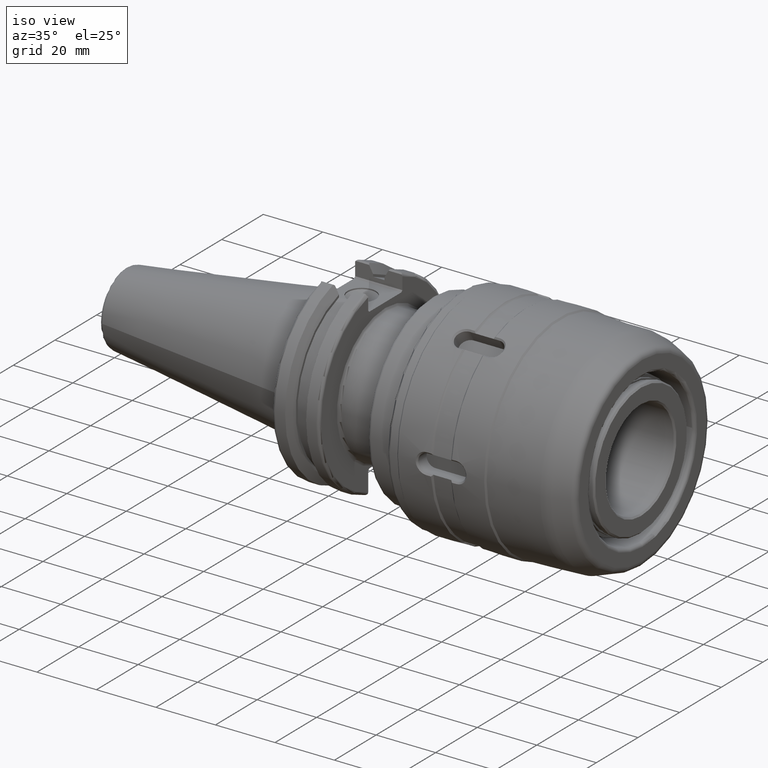
[diagram: clean part render]
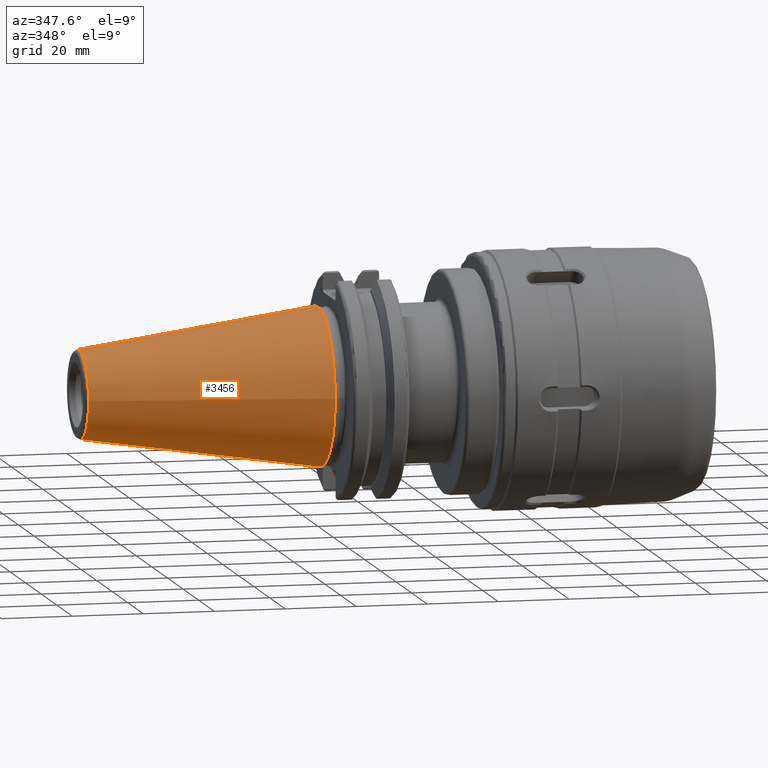
[diagram: tour spotlight — one face highlighted and labeled with its STEP entity id]
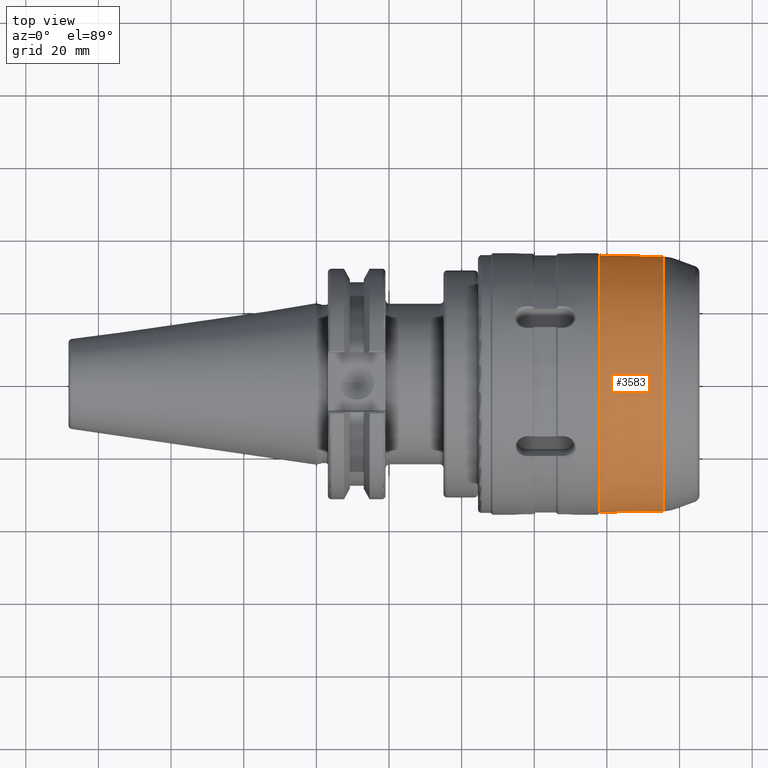
[diagram: tour spotlight — one face highlighted and labeled with its STEP entity id]
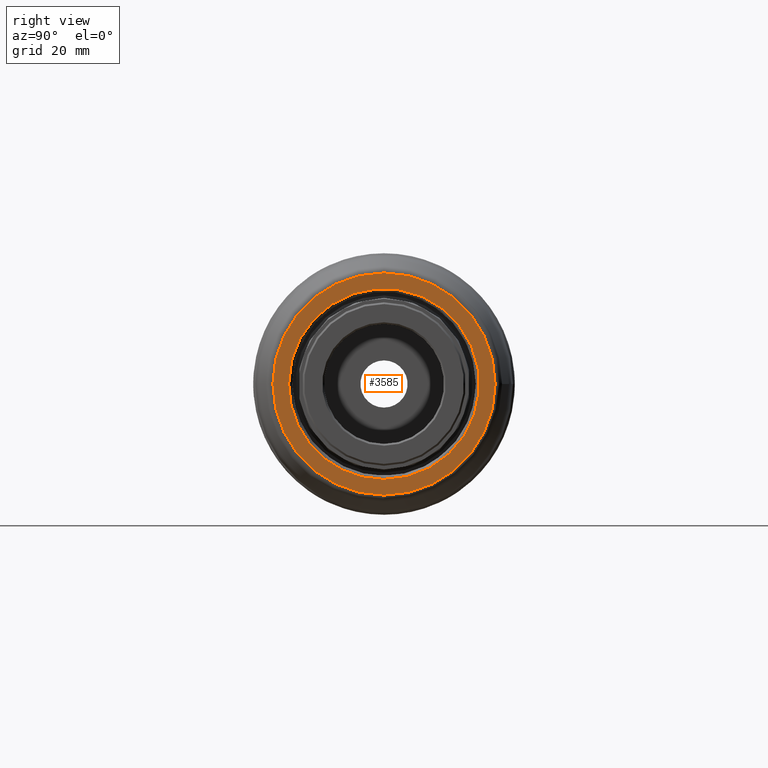
[diagram: tour spotlight — one face highlighted and labeled with its STEP entity id]
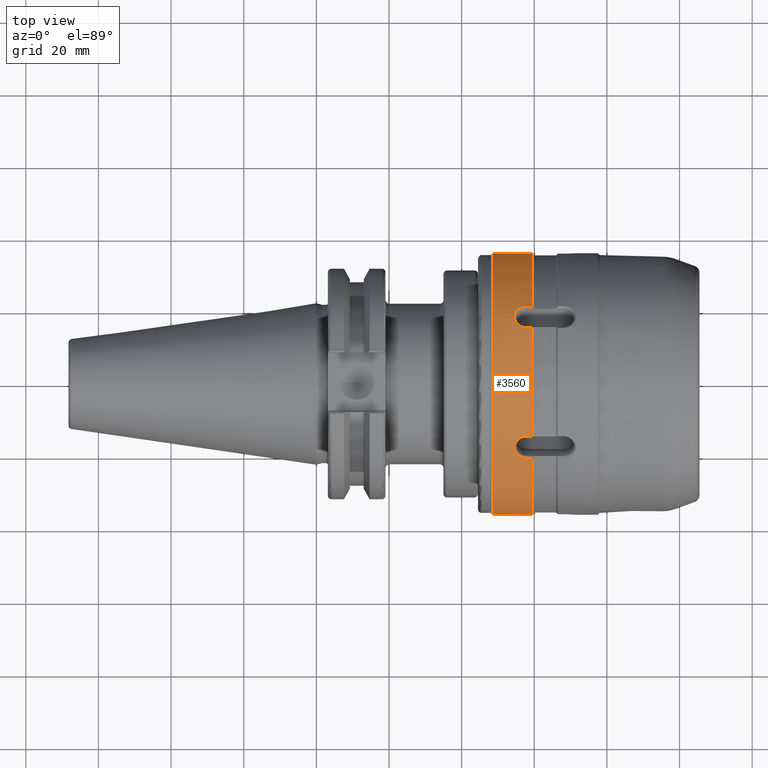
[diagram: tour spotlight — one face highlighted and labeled with its STEP entity id]
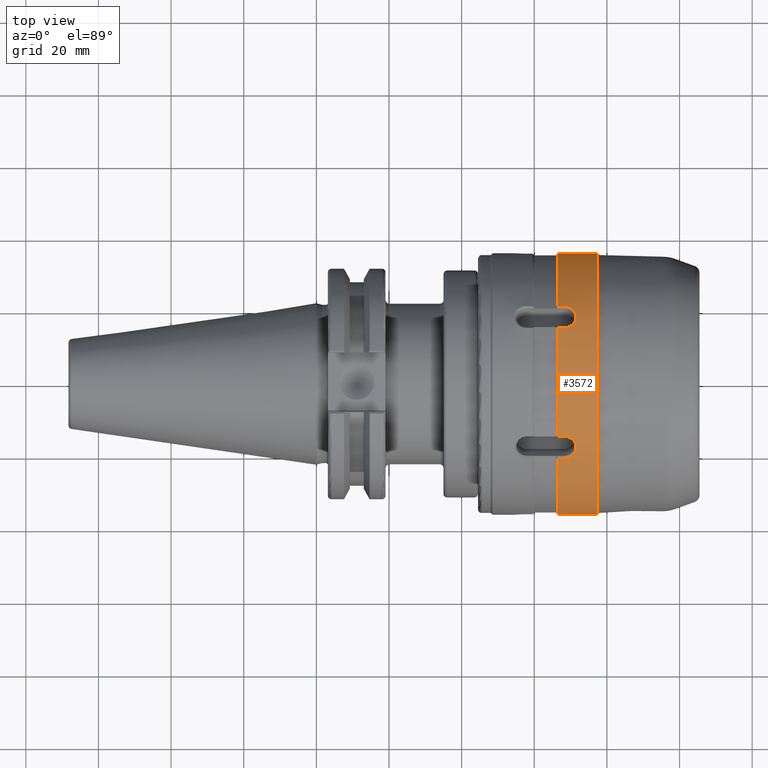
[diagram: tour spotlight — one face highlighted and labeled with its STEP entity id]
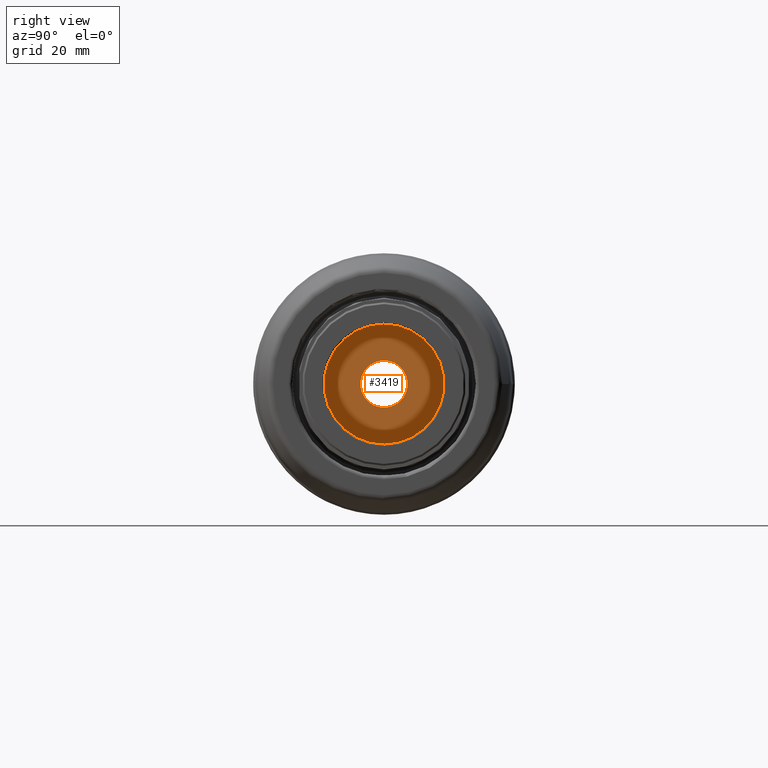
[diagram: tour spotlight — one face highlighted and labeled with its STEP entity id]
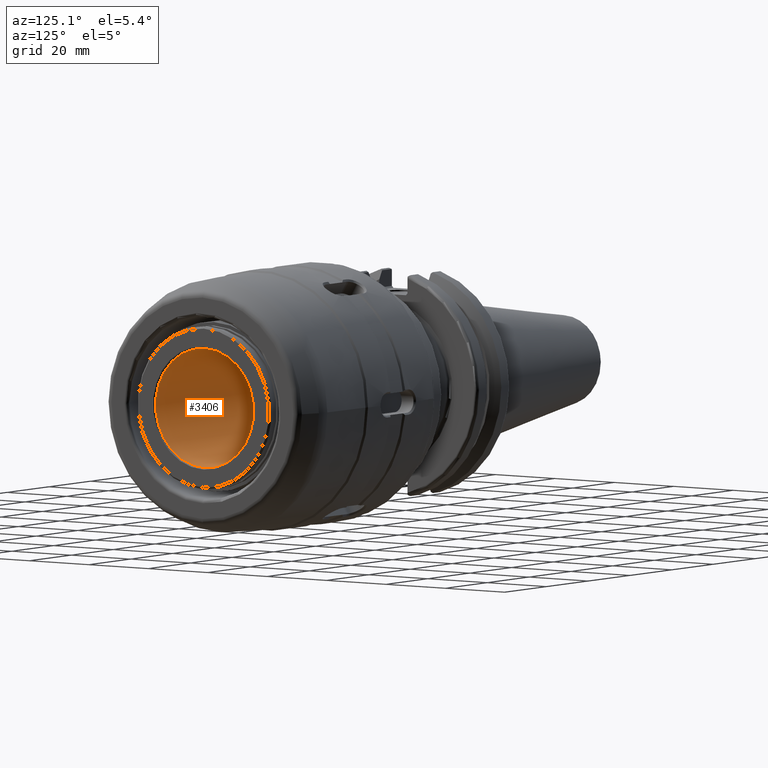
[diagram: tour spotlight — one face highlighted and labeled with its STEP entity id]
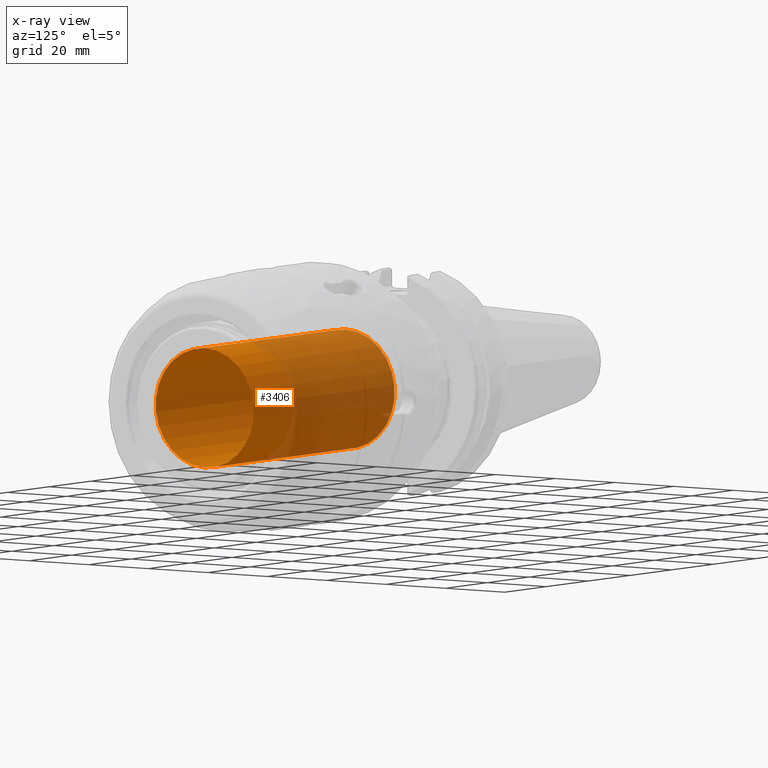
[diagram: x-ray of the same camera — body ghosted, this tour face saturated]
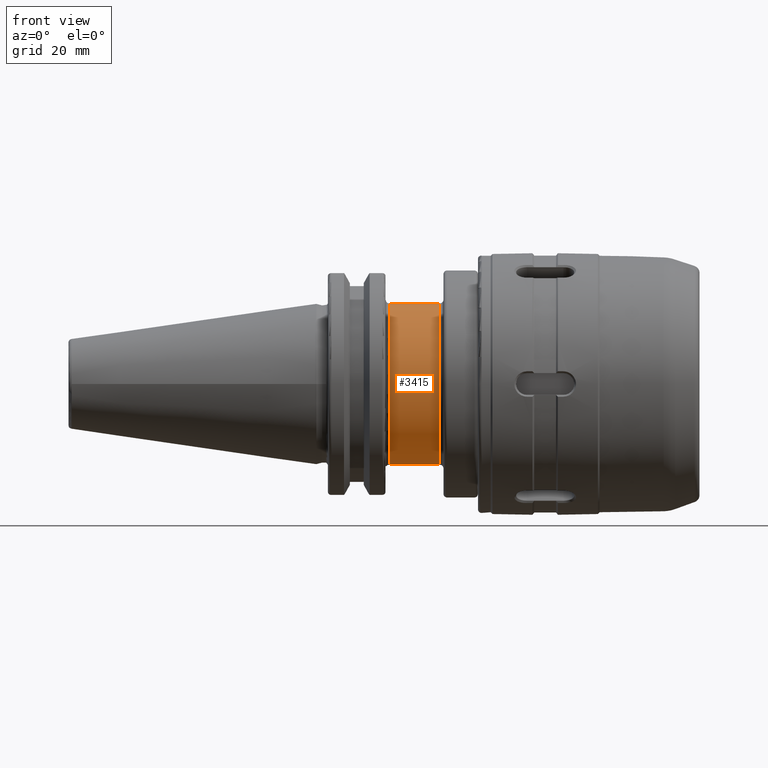
[diagram: tour spotlight — one face highlighted and labeled with its STEP entity id]
A machine part: a face-by-face anatomy tour. The part has 194 B-rep faces; the first image is the clean iso view, then the 8 largest visible faces are spotlighted one at a time (largest first), each with its STEP entity span.

Face 1 — auxiliary view, entity #3456. In plain terms, the highlighted conical surface has half-angle 8.297 deg.
Definition (entity closure, byte-faithful):
#349=FACE_OUTER_BOUND('',#556,.T.);
#556=EDGE_LOOP('',(#2605,#2606,#2607,#2608,#2609,#2610,#2611));
#769=LINE('',#5612,#1010);
#1010=VECTOR('',#4428,17.2484375);
#1274=CIRCLE('',#3806,12.3966635780937);
#1275=CIRCLE('',#3807,12.3966635780937);
#1279=CIRCLE('',#3811,12.3966635780937);
#1282=CIRCLE('',#3816,22.225);
#1283=CIRCLE('',#3817,22.225);
#1534=VERTEX_POINT('',#5591);
#1535=VERTEX_POINT('',#5592);
#1536=VERTEX_POINT('',#5594);
#1541=VERTEX_POINT('',#5608);
#1542=VERTEX_POINT('',#5609);
#1939=EDGE_CURVE('',#1534,#1535,#1274,.T.);
#1940=EDGE_CURVE('',#1535,#1536,#1275,.T.);
#1944=EDGE_CURVE('',#1536,#1534,#1279,.T.);
#1947=EDGE_CURVE('',#1541,#1542,#1282,.T.);
#1948=EDGE_CURVE('',#1542,#1541,#1283,.T.);
#1949=EDGE_CURVE('',#1542,#1535,#769,.T.);
#2605=ORIENTED_EDGE('',*,*,#1947,.F.);
#2606=ORIENTED_EDGE('',*,*,#1948,.F.);
#2607=ORIENTED_EDGE('',*,*,#1949,.T.);
#2608=ORIENTED_EDGE('',*,*,#1939,.F.);
#2609=ORIENTED_EDGE('',*,*,#1944,.F.);
#2610=ORIENTED_EDGE('',*,*,#1940,.F.);
#2611=ORIENTED_EDGE('',*,*,#1949,.F.);
#3377=CONICAL_SURFACE('',#3815,17.2484375,0.144812498238939);
#3456=ADVANCED_FACE('',(#349),#3377,.T.);
#3806=AXIS2_PLACEMENT_3D('',#5593,#4404,#4405);
#3807=AXIS2_PLACEMENT_3D('',#5595,#4406,#4407);
#3811=AXIS2_PLACEMENT_3D('',#5601,#4414,#4415);
#3815=AXIS2_PLACEMENT_3D('',#5607,#4422,#4423);
#3816=AXIS2_PLACEMENT_3D('',#5610,#4424,#4425);
#3817=AXIS2_PLACEMENT_3D('',#5611,#4426,#4427);
#4404=DIRECTION('center_axis',(-1.,0.,0.));
#4405=DIRECTION('ref_axis',(0.,-1.,3.06161699786838E-17));
#4406=DIRECTION('center_axis',(-1.,0.,0.));
#4407=DIRECTION('ref_axis',(0.,-1.,3.06161699786838E-17));
#4414=DIRECTION('center_axis',(-1.,0.,0.));
#4415=DIRECTION('ref_axis',(0.,-1.,3.06161699786838E-17));
#4422=DIRECTION('center_axis',(1.,0.,0.));
#4423=DIRECTION('ref_axis',(0.,1.,0.));
#4424=DIRECTION('center_axis',(1.,0.,0.));
#4425=DIRECTION('ref_axis',(0.,0.,-1.));
#4426=DIRECTION('center_axis',(1.,0.,0.));
#4427=DIRECTION('ref_axis',(0.,0.,-1.));
#4428=DIRECTION('',(-0.989532981063282,0.144306893071729,1.76724974695192E-17));
#5591=CARTESIAN_POINT('',(-67.3943068930717,12.3966635780937,-3.79538359275475E-15));
#5592=CARTESIAN_POINT('',(-67.3943068930718,-12.3966635780937,-1.5181534371019E-15));
#5593=CARTESIAN_POINT('Origin',(-67.3943068930717,0.,-1.89769179637738E-15));
#5594=CARTESIAN_POINT('',(-67.3943068930717,-1.5181534371019E-15,12.3966635780937));
#5595=CARTESIAN_POINT('Origin',(-67.3943068930717,0.,-1.89769179637738E-15));
#5601=CARTESIAN_POINT('Origin',(-67.3943068930717,0.,-1.89769179637738E-15));
#5607=CARTESIAN_POINT('Origin',(-34.125,0.,0.));
#5608=CARTESIAN_POINT('',(0.,22.225,0.));
#5609=CARTESIAN_POINT('',(0.,-22.225,-2.72177751110499E-15));
#5610=CARTESIAN_POINT('Origin',(0.,0.,0.));
#5611=CARTESIAN_POINT('Origin',(0.,0.,0.));
#5612=CARTESIAN_POINT('',(-34.125,-17.2484375,-2.11232437746682E-15));

Face 2 — top view, entity #3583. In plain terms, the highlighted conical surface has half-angle 1.487 deg.
Definition (entity closure, byte-faithful):
#476=FACE_OUTER_BOUND('',#687,.T.);
#687=EDGE_LOOP('',(#3287,#3288,#3289,#3290,#3291,#3292,#3293));
#941=LINE('',#7343,#1182);
#1182=VECTOR('',#5012,35.25);
#1367=CIRCLE('',#4015,35.0423000871868);
#1368=CIRCLE('',#4016,35.0423000871868);
#1369=CIRCLE('',#4017,35.0423000871868);
#1374=CIRCLE('',#4024,35.5);
#1375=CIRCLE('',#4025,35.5);
#1735=VERTEX_POINT('',#7325);
#1736=VERTEX_POINT('',#7327);
#1737=VERTEX_POINT('',#7329);
#1741=VERTEX_POINT('',#7342);
#1742=VERTEX_POINT('',#7344);
#2259=EDGE_CURVE('',#1735,#1736,#1367,.T.);
#2260=EDGE_CURVE('',#1736,#1737,#1368,.T.);
#2261=EDGE_CURVE('',#1737,#1735,#1369,.T.);
#2267=EDGE_CURVE('',#1736,#1741,#941,.T.);
#2268=EDGE_CURVE('',#1741,#1742,#1374,.T.);
#2269=EDGE_CURVE('',#1742,#1741,#1375,.T.);
#3287=ORIENTED_EDGE('',*,*,#2261,.F.);
#3288=ORIENTED_EDGE('',*,*,#2260,.F.);
#3289=ORIENTED_EDGE('',*,*,#2267,.T.);
#3290=ORIENTED_EDGE('',*,*,#2268,.T.);
#3291=ORIENTED_EDGE('',*,*,#2269,.T.);
#3292=ORIENTED_EDGE('',*,*,#2267,.F.);
#3293=ORIENTED_EDGE('',*,*,#2259,.F.);
#3401=CONICAL_SURFACE('',#4023,35.25,0.0259579869490154);
#3583=ADVANCED_FACE('',(#476),#3401,.T.);
#4015=AXIS2_PLACEMENT_3D('',#7328,#4993,#4994);
#4016=AXIS2_PLACEMENT_3D('',#7330,#4995,#4996);
#4017=AXIS2_PLACEMENT_3D('',#7331,#4997,#4998);
#4023=AXIS2_PLACEMENT_3D('',#7341,#5010,#5011);
#4024=AXIS2_PLACEMENT_3D('',#7345,#5013,#5014);
#4025=AXIS2_PLACEMENT_3D('',#7346,#5015,#5016);
#4993=DIRECTION('center_axis',(1.,0.,0.));
#4994=DIRECTION('ref_axis',(0.,-1.,3.06161699786838E-17));
#4995=DIRECTION('center_axis',(1.,0.,0.));
#4996=DIRECTION('ref_axis',(0.,-1.,3.06161699786838E-17));
#4997=DIRECTION('center_axis',(1.,0.,0.));
#4998=DIRECTION('ref_axis',(0.,-1.,3.06161699786838E-17));
#5010=DIRECTION('center_axis',(-1.,0.,0.));
#5011=DIRECTION('ref_axis',(0.,1.,0.));
#5012=DIRECTION('',(-0.999663110374247,-0.025955071891372,-3.17857957134081E-18));
#5013=DIRECTION('center_axis',(1.,0.,0.));
#5014=DIRECTION('ref_axis',(0.,0.,-1.));
#5015=DIRECTION('center_axis',(1.,0.,0.));
#5016=DIRECTION('ref_axis',(0.,0.,-1.));
#7325=CARTESIAN_POINT('',(51.1283741526824,-4.29144406365343E-15,35.0423000871868));
#7327=CARTESIAN_POINT('',(51.1283741526824,-35.0423000871868,-4.29144406365343E-15));
#7328=CARTESIAN_POINT('Origin',(51.1283741526824,0.,-5.36430507956679E-15));
#7329=CARTESIAN_POINT('',(51.1283741526824,35.0423000871868,-2.14572203182672E-15));
#7330=CARTESIAN_POINT('Origin',(51.1283741526824,0.,-5.36430507956679E-15));
#7331=CARTESIAN_POINT('Origin',(51.1283741526824,0.,-5.36430507956679E-15));
#7341=CARTESIAN_POINT('Origin',(43.1287838708181,0.,0.));
#7342=CARTESIAN_POINT('',(33.5,-35.5,-4.3474961369731E-15));
#7343=CARTESIAN_POINT('',(43.1287838708181,-35.25,-4.31687996699442E-15));
#7344=CARTESIAN_POINT('',(33.5,35.5,0.));
#7345=CARTESIAN_POINT('Origin',(33.5,0.,0.));
#7346=CARTESIAN_POINT('Origin',(33.5,0.,0.));

Face 3 — right view, entity #3585. In plain terms, the highlighted planar face has unit normal (1, 0, 0).
Definition (entity closure, byte-faithful):
#206=FACE_BOUND('',#690,.T.);
#292=PLANE('',#4030);
#478=FACE_OUTER_BOUND('',#689,.T.);
#689=EDGE_LOOP('',(#3301,#3302));
#690=EDGE_LOOP('',(#3303,#3304));
#1376=CIRCLE('',#4027,30.5995849235806);
#1378=CIRCLE('',#4029,30.5995849235806);
#1379=CIRCLE('',#4031,26.2678800485097);
#1380=CIRCLE('',#4032,26.2678800485097);
#1743=VERTEX_POINT('',#7348);
#1744=VERTEX_POINT('',#7349);
#1745=VERTEX_POINT('',#7354);
#1746=VERTEX_POINT('',#7355);
#2270=EDGE_CURVE('',#1743,#1744,#1376,.T.);
#2272=EDGE_CURVE('',#1744,#1743,#1378,.T.);
#2273=EDGE_CURVE('',#1745,#1746,#1379,.T.);
#2274=EDGE_CURVE('',#1746,#1745,#1380,.T.);
#3301=ORIENTED_EDGE('',*,*,#2270,.F.);
#3302=ORIENTED_EDGE('',*,*,#2272,.F.);
#3303=ORIENTED_EDGE('',*,*,#2273,.F.);
#3304=ORIENTED_EDGE('',*,*,#2274,.F.);
#3585=ADVANCED_FACE('',(#478,#206),#292,.T.);
#4027=AXIS2_PLACEMENT_3D('',#7350,#5019,#5020);
#4029=AXIS2_PLACEMENT_3D('',#7352,#5023,#5024);
#4030=AXIS2_PLACEMENT_3D('',#7353,#5025,#5026);
#4031=AXIS2_PLACEMENT_3D('',#7356,#5027,#5028);
#4032=AXIS2_PLACEMENT_3D('',#7357,#5029,#5030);
#5019=DIRECTION('center_axis',(-1.,0.,0.));
#5020=DIRECTION('ref_axis',(0.,-1.,1.83697019872103E-16));
#5023=DIRECTION('center_axis',(-1.,0.,0.));
#5024=DIRECTION('ref_axis',(0.,-1.,1.83697019872103E-16));
#5025=DIRECTION('center_axis',(1.,0.,0.));
#5026=DIRECTION('ref_axis',(0.,0.,-1.));
#5027=DIRECTION('center_axis',(1.,0.,0.));
#5028=DIRECTION('ref_axis',(0.,-1.,1.83697019872103E-16));
#5029=DIRECTION('center_axis',(1.,0.,0.));
#5030=DIRECTION('ref_axis',(0.,-1.,1.83697019872103E-16));
#7348=CARTESIAN_POINT('',(61.,30.5995849235806,-9.36842093297514E-15));
#7349=CARTESIAN_POINT('',(61.,-3.74736837319006E-15,30.5995849235806));
#7350=CARTESIAN_POINT('Origin',(61.,0.,0.));
#7352=CARTESIAN_POINT('Origin',(61.,0.,0.));
#7353=CARTESIAN_POINT('Origin',(61.,25.2505,0.));
#7354=CARTESIAN_POINT('',(61.,26.2678800485097,-1.6084437610897E-15));
#7355=CARTESIAN_POINT('',(61.,-3.21688752217941E-15,26.2678800485097));
#7356=CARTESIAN_POINT('Origin',(61.,0.,0.));
#7357=CARTESIAN_POINT('Origin',(61.,0.,0.));

Face 4 — top view, entity #3560. In plain terms, the highlighted cylindrical surface (bore or boss wall) has radius 36 mm, axis along (1, 0, 0).
Definition (entity closure, byte-faithful):
#101=B_SPLINE_CURVE_WITH_KNOTS('',3,(#5943,#5944,#5945,#5946,#5947,#5948,
#5949,#5950,#5951,#5952,#5953,#5954,#5955,#5956),.UNSPECIFIED.,.F.,.F.,
(4,1,1,1,1,1,1,1,1,1,1,4),(-0.904498213413268,-0.775284182925658,-0.710677167681854,
-0.646070152438049,-0.516856121950439,-0.323035076219024,-0.306883322408073,
-0.290731568597122,-0.258428060975219,-0.193821045731414,-0.12921403048761,
2.40151940359921E-16),.UNSPECIFIED.);
#105=B_SPLINE_CURVE_WITH_KNOTS('',3,(#6187,#6188,#6189,#6190,#6191,#6192,
#6193,#6194,#6195,#6196,#6197,#6198,#6199,#6200),.UNSPECIFIED.,.F.,.F.,
(4,1,1,1,1,1,1,1,1,1,1,4),(-0.904498213413268,-0.775284182925658,-0.710677167681853,
-0.646070152438049,-0.613766644816146,-0.597614891005195,-0.581463137194244,
-0.387642091462829,-0.258428060975219,-0.193821045731414,-0.129214030487609,
4.43449221175667E-16),.UNSPECIFIED.);
#110=B_SPLINE_CURVE_WITH_KNOTS('',3,(#6445,#6446,#6447,#6448,#6449,#6450,
#6451,#6452,#6453,#6454,#6455),.UNSPECIFIED.,.F.,.F.,(4,1,1,1,1,1,1,1,4),
(-0.904498213413269,-0.775284182925659,-0.726828921492805,-0.646070152438049,
-0.613766644816146,-0.581463137194244,-0.557235506477817,-0.516856121950439,
-0.452216093061957),.UNSPECIFIED.);
#111=B_SPLINE_CURVE_WITH_KNOTS('',3,(#6456,#6457,#6458,#6459,#6460,#6461,
#6462,#6463,#6464),.UNSPECIFIED.,.F.,.F.,(4,1,1,1,1,1,4),(-0.452216093061957,
-0.387642091462829,-0.323035076219024,-0.298807445502597,-0.258428060975219,
-0.129214030487609,4.58444066344065E-16),.UNSPECIFIED.);
#115=B_SPLINE_CURVE_WITH_KNOTS('',3,(#6709,#6710,#6711,#6712,#6713,#6714,
#6715,#6716,#6717,#6718,#6719,#6720,#6721,#6722),.UNSPECIFIED.,.F.,.F.,
(4,1,1,1,1,1,1,1,1,1,1,4),(-0.904498213413268,-0.775284182925658,-0.710677167681853,
-0.646070152438048,-0.613766644816146,-0.597614891005195,-0.581463137194244,
-0.387642091462829,-0.258428060975219,-0.193821045731414,-0.129214030487609,
6.49203849176561E-16),.UNSPECIFIED.);
#119=B_SPLINE_CURVE_WITH_KNOTS('',3,(#6953,#6954,#6955,#6956,#6957,#6958,
#6959,#6960,#6961,#6962,#6963,#6964,#6965,#6966),.UNSPECIFIED.,.F.,.F.,
(4,1,1,1,1,1,1,1,1,1,1,4),(-0.904498213413268,-0.775284182925658,-0.710677167681854,
-0.646070152438049,-0.613766644816146,-0.597614891005195,-0.581463137194244,
-0.387642091462829,-0.258428060975219,-0.193821045731414,-0.12921403048761,
2.22044604925031E-16),.UNSPECIFIED.);
#121=B_SPLINE_CURVE_WITH_KNOTS('',3,(#7041,#7042,#7043,#7044,#7045,#7046,
#7047,#7048,#7049,#7050,#7051,#7052,#7053,#7054,#7055,#7056),
 .UNSPECIFIED.,.F.,.F.,(4,1,1,1,1,1,1,1,1,1,1,1,1,4),(-0.904498213413268,
-0.775284182925658,-0.726828921492804,-0.646070152438048,-0.613766644816146,
-0.581463137194243,-0.557235506477817,-0.516856121950439,-0.387642091462829,
-0.323035076219024,-0.298807445502597,-0.258428060975219,-0.129214030487609,
4.58444066344065E-16),.UNSPECIFIED.);
#179=CYLINDRICAL_SURFACE('',#3965,36.);
#453=FACE_OUTER_BOUND('',#662,.T.);
#662=EDGE_LOOP('',(#3118,#3119,#3120,#3121,#3122,#3123,#3124,#3125,#3126,
#3127,#3128,#3129,#3130,#3131,#3132,#3133,#3134,#3135,#3136,#3137,#3138,
#3139,#3140,#3141,#3142,#3143,#3144,#3145,#3146));
#811=LINE('',#5884,#1052);
#813=LINE('',#5976,#1054);
#835=LINE('',#6128,#1076);
#837=LINE('',#6220,#1078);
#859=LINE('',#6377,#1100);
#861=LINE('',#6486,#1102);
#883=LINE('',#6650,#1124);
#885=LINE('',#6742,#1126);
#907=LINE('',#6894,#1148);
#909=LINE('',#6986,#1150);
#915=LINE('',#7034,#1156);
#916=LINE('',#7039,#1157);
#917=LINE('',#7057,#1158);
#1052=VECTOR('',#4590,10.);
#1054=VECTOR('',#4594,10.);
#1076=VECTOR('',#4646,10.);
#1078=VECTOR('',#4650,10.);
#1100=VECTOR('',#4702,10.);
#1102=VECTOR('',#4706,10.);
#1124=VECTOR('',#4758,10.);
#1126=VECTOR('',#4762,10.);
#1148=VECTOR('',#4814,10.);
#1150=VECTOR('',#4818,10.);
#1156=VECTOR('',#4870,36.);
#1157=VECTOR('',#4875,10.);
#1158=VECTOR('',#4876,10.);
#1307=CIRCLE('',#3881,36.);
#1313=CIRCLE('',#3897,36.);
#1319=CIRCLE('',#3913,36.);
#1325=CIRCLE('',#3929,36.);
#1331=CIRCLE('',#3945,36.);
#1336=CIRCLE('',#3964,36.);
#1337=CIRCLE('',#3966,36.);
#1338=CIRCLE('',#3967,36.);
#1585=VERTEX_POINT('',#5878);
#1586=VERTEX_POINT('',#5882);
#1587=VERTEX_POINT('',#5941);
#1588=VERTEX_POINT('',#5972);
#1591=VERTEX_POINT('',#5982);
#1610=VERTEX_POINT('',#6126);
#1611=VERTEX_POINT('',#6185);
#1612=VERTEX_POINT('',#6216);
#1615=VERTEX_POINT('',#6226);
#1635=VERTEX_POINT('',#6375);
#1636=VERTEX_POINT('',#6442);
#1637=VERTEX_POINT('',#6444);
#1638=VERTEX_POINT('',#6482);
#1641=VERTEX_POINT('',#6492);
#1660=VERTEX_POINT('',#6648);
#1661=VERTEX_POINT('',#6707);
#1662=VERTEX_POINT('',#6738);
#1665=VERTEX_POINT('',#6748);
#1684=VERTEX_POINT('',#6892);
#1685=VERTEX_POINT('',#6951);
#1686=VERTEX_POINT('',#6982);
#1689=VERTEX_POINT('',#6992);
#1694=VERTEX_POINT('',#7025);
#1696=VERTEX_POINT('',#7033);
#1697=VERTEX_POINT('',#7035);
#1698=VERTEX_POINT('',#7038);
#1699=VERTEX_POINT('',#7040);
#2025=EDGE_CURVE('',#1586,#1585,#811,.T.);
#2027=EDGE_CURVE('',#1587,#1586,#101,.T.);
#2030=EDGE_CURVE('',#1588,#1587,#813,.T.);
#2034=EDGE_CURVE('',#1591,#1588,#1307,.T.);
#2063=EDGE_CURVE('',#1610,#1591,#835,.T.);
#2065=EDGE_CURVE('',#1611,#1610,#105,.T.);
#2068=EDGE_CURVE('',#1612,#1611,#837,.T.);
#2072=EDGE_CURVE('',#1615,#1612,#1313,.T.);
#2102=EDGE_CURVE('',#1635,#1615,#859,.T.);
#2104=EDGE_CURVE('',#1636,#1637,#110,.T.);
#2105=EDGE_CURVE('',#1637,#1635,#111,.T.);
#2108=EDGE_CURVE('',#1638,#1636,#861,.T.);
#2112=EDGE_CURVE('',#1641,#1638,#1319,.T.);
#2141=EDGE_CURVE('',#1660,#1641,#883,.T.);
#2143=EDGE_CURVE('',#1661,#1660,#115,.T.);
#2146=EDGE_CURVE('',#1662,#1661,#885,.T.);
#2150=EDGE_CURVE('',#1665,#1662,#1325,.T.);
#2179=EDGE_CURVE('',#1684,#1665,#907,.T.);
#2181=EDGE_CURVE('',#1685,#1684,#119,.T.);
#2184=EDGE_CURVE('',#1686,#1685,#909,.T.);
#2188=EDGE_CURVE('',#1689,#1686,#1331,.T.);
#2197=EDGE_CURVE('',#1585,#1694,#1336,.T.);
#2200=EDGE_CURVE('',#1637,#1696,#915,.T.);
#2201=EDGE_CURVE('',#1696,#1697,#1337,.T.);
#2202=EDGE_CURVE('',#1697,#1696,#1338,.T.);
#2203=EDGE_CURVE('',#1698,#1689,#916,.T.);
#2204=EDGE_CURVE('',#1699,#1698,#121,.T.);
#2205=EDGE_CURVE('',#1694,#1699,#917,.T.);
#3118=ORIENTED_EDGE('',*,*,#2030,.F.);
#3119=ORIENTED_EDGE('',*,*,#2034,.F.);
#3120=ORIENTED_EDGE('',*,*,#2063,.F.);
#3121=ORIENTED_EDGE('',*,*,#2065,.F.);
#3122=ORIENTED_EDGE('',*,*,#2068,.F.);
#3123=ORIENTED_EDGE('',*,*,#2072,.F.);
#3124=ORIENTED_EDGE('',*,*,#2102,.F.);
#3125=ORIENTED_EDGE('',*,*,#2105,.F.);
#3126=ORIENTED_EDGE('',*,*,#2200,.T.);
#3127=ORIENTED_EDGE('',*,*,#2201,.T.);
#3128=ORIENTED_EDGE('',*,*,#2202,.T.);
#3129=ORIENTED_EDGE('',*,*,#2200,.F.);
#3130=ORIENTED_EDGE('',*,*,#2104,.F.);
#3131=ORIENTED_EDGE('',*,*,#2108,.F.);
#3132=ORIENTED_EDGE('',*,*,#2112,.F.);
#3133=ORIENTED_EDGE('',*,*,#2141,.F.);
#3134=ORIENTED_EDGE('',*,*,#2143,.F.);
#3135=ORIENTED_EDGE('',*,*,#2146,.F.);
#3136=ORIENTED_EDGE('',*,*,#2150,.F.);
#3137=ORIENTED_EDGE('',*,*,#2179,.F.);
#3138=ORIENTED_EDGE('',*,*,#2181,.F.);
#3139=ORIENTED_EDGE('',*,*,#2184,.F.);
#3140=ORIENTED_EDGE('',*,*,#2188,.F.);
#3141=ORIENTED_EDGE('',*,*,#2203,.F.);
#3142=ORIENTED_EDGE('',*,*,#2204,.F.);
#3143=ORIENTED_EDGE('',*,*,#2205,.F.);
#3144=ORIENTED_EDGE('',*,*,#2197,.F.);
#3145=ORIENTED_EDGE('',*,*,#2025,.F.);
#3146=ORIENTED_EDGE('',*,*,#2027,.F.);
#3560=ADVANCED_FACE('',(#453),#179,.T.);
#3881=AXIS2_PLACEMENT_3D('',#5986,#4600,#4601);
#3897=AXIS2_PLACEMENT_3D('',#6230,#4656,#4657);
#3913=AXIS2_PLACEMENT_3D('',#6496,#4712,#4713);
#3929=AXIS2_PLACEMENT_3D('',#6752,#4768,#4769);
#3945=AXIS2_PLACEMENT_3D('',#6996,#4824,#4825);
#3964=AXIS2_PLACEMENT_3D('',#7026,#4865,#4866);
#3965=AXIS2_PLACEMENT_3D('',#7032,#4868,#4869);
#3966=AXIS2_PLACEMENT_3D('',#7036,#4871,#4872);
#3967=AXIS2_PLACEMENT_3D('',#7037,#4873,#4874);
#4590=DIRECTION('',(1.,0.,0.));
#4594=DIRECTION('',(-1.,0.,0.));
#4600=DIRECTION('center_axis',(1.,0.,0.));
#4601=DIRECTION('ref_axis',(0.,0.,-1.));
#4646=DIRECTION('',(1.,0.,0.));
#4650=DIRECTION('',(-1.,0.,0.));
#4656=DIRECTION('center_axis',(1.,0.,0.));
#4657=DIRECTION('ref_axis',(0.,0.,-1.));
#4702=DIRECTION('',(1.,0.,0.));
#4706=DIRECTION('',(-1.,0.,0.));
#4712=DIRECTION('center_axis',(1.,0.,0.));
#4713=DIRECTION('ref_axis',(0.,0.,-1.));
#4758=DIRECTION('',(1.,0.,0.));
#4762=DIRECTION('',(-1.,0.,0.));
#4768=DIRECTION('center_axis',(1.,0.,0.));
#4769=DIRECTION('ref_axis',(0.,0.,-1.));
#4814=DIRECTION('',(1.,0.,0.));
#4818=DIRECTION('',(-1.,0.,0.));
#4824=DIRECTION('center_axis',(1.,0.,0.));
#4825=DIRECTION('ref_axis',(0.,0.,-1.));
#4865=DIRECTION('center_axis',(1.,0.,0.));
#4866=DIRECTION('ref_axis',(0.,0.,-1.));
#4868=DIRECTION('center_axis',(1.,0.,0.));
#4869=DIRECTION('ref_axis',(0.,1.,0.));
#4870=DIRECTION('',(-1.,0.,0.));
#4871=DIRECTION('center_axis',(1.,0.,0.));
#4872=DIRECTION('ref_axis',(0.,0.,-1.));
#4873=DIRECTION('center_axis',(1.,0.,0.));
#4874=DIRECTION('ref_axis',(0.,0.,-1.));
#4875=DIRECTION('',(1.,0.,0.));
#4876=DIRECTION('',(-1.,0.,0.));
#5878=CARTESIAN_POINT('',(15.,20.9441499978229,-29.2804129217587));
#5882=CARTESIAN_POINT('',(13.5,20.9441499978229,-29.2804129217587));
#5884=CARTESIAN_POINT('',(9.5,20.9441499978229,-29.2804129217587));
#5941=CARTESIAN_POINT('',(13.5,14.8855064246296,-32.7783724196659));
#5943=CARTESIAN_POINT('Ctrl Pts',(13.5,14.8855064246296,-32.7783724196659));
#5944=CARTESIAN_POINT('Ctrl Pts',(12.9972521683272,14.8855064246296,-32.7783724196659));
#5945=CARTESIAN_POINT('Ctrl Pts',(12.1867152547311,15.0465808253346,-32.7063301320407));
#5946=CARTESIAN_POINT('Ctrl Pts',(11.2871096756495,15.5728183853847,-32.4585189029498));
#5947=CARTESIAN_POINT('Ctrl Pts',(10.5723130043137,16.2115860675684,-32.1472574245));
#5948=CARTESIAN_POINT('Ctrl Pts',(9.83835357812791,17.5483970024069,-31.4558695818307));
#5949=CARTESIAN_POINT('Ctrl Pts',(10.010725689324,18.7447950115203,-30.7440378063095));
#5950=CARTESIAN_POINT('Ctrl Pts',(10.4394555787356,19.4514600932953,-30.2926365786416));
#5951=CARTESIAN_POINT('Ctrl Pts',(10.5744909669957,19.6421993813214,-30.1695095508561));
#5952=CARTESIAN_POINT('Ctrl Pts',(10.8439351013722,19.9569314411048,-29.9630386493152));
#5953=CARTESIAN_POINT('Ctrl Pts',(11.2840399978448,20.322816164602,-29.71629769605));
#5954=CARTESIAN_POINT('Ctrl Pts',(12.1889900052381,20.8014844368716,-29.383679520579));
#5955=CARTESIAN_POINT('Ctrl Pts',(12.9972521683273,20.944149997823,-29.2804129217587));
#5956=CARTESIAN_POINT('Ctrl Pts',(13.5,20.944149997823,-29.2804129217587));
#5972=CARTESIAN_POINT('',(15.,14.8855064246297,-32.7783724196658));
#5976=CARTESIAN_POINT('',(9.5,14.8855064246297,-32.7783724196658));
#5982=CARTESIAN_POINT('',(15.,-14.8855064246297,-32.7783724196658));
#5986=CARTESIAN_POINT('Origin',(15.,0.,0.));
#6126=CARTESIAN_POINT('',(13.5,-14.8855064246297,-32.7783724196658));
#6128=CARTESIAN_POINT('',(9.5,-14.8855064246297,-32.7783724196658));
#6185=CARTESIAN_POINT('',(13.5,-20.944149997823,-29.2804129217586));
#6187=CARTESIAN_POINT('Ctrl Pts',(13.5,-20.944149997823,-29.2804129217586));
#6188=CARTESIAN_POINT('Ctrl Pts',(12.9972521683272,-20.944149997823,-29.2804129217586));
#6189=CARTESIAN_POINT('Ctrl Pts',(12.1889900052382,-20.8014844368717,-29.3836795205791));
#6190=CARTESIAN_POINT('Ctrl Pts',(11.2840399978448,-20.3228161646021,-29.7162976960501));
#6191=CARTESIAN_POINT('Ctrl Pts',(10.8439351013722,-19.9569314411049,-29.9630386493153));
#6192=CARTESIAN_POINT('Ctrl Pts',(10.5744909669957,-19.6421993813215,-30.1695095508563));
#6193=CARTESIAN_POINT('Ctrl Pts',(10.4394555787357,-19.4514600932954,-30.2926365786417));
#6194=CARTESIAN_POINT('Ctrl Pts',(10.0107256893241,-18.7447950115205,-30.7440378063096));
#6195=CARTESIAN_POINT('Ctrl Pts',(9.83835357812796,-17.5483970024069,-31.4558695818308));
#6196=CARTESIAN_POINT('Ctrl Pts',(10.5723130043137,-16.2115860675685,-32.1472574245));
#6197=CARTESIAN_POINT('Ctrl Pts',(11.2871096756495,-15.5728183853847,-32.4585189029499));
#6198=CARTESIAN_POINT('Ctrl Pts',(12.1867152547312,-15.0465808253347,-32.7063301320407));
#6199=CARTESIAN_POINT('Ctrl Pts',(12.9972521683273,-14.8855064246296,-32.7783724196658));
#6200=CARTESIAN_POINT('Ctrl Pts',(13.5,-14.8855064246296,-32.7783724196658));
#6216=CARTESIAN_POINT('',(15.,-20.9441499978229,-29.2804129217587));
#6220=CARTESIAN_POINT('',(9.5,-20.9441499978229,-29.2804129217587));
#6226=CARTESIAN_POINT('',(15.,-35.8296564224526,-3.49795949790708));
#6230=CARTESIAN_POINT('Origin',(15.,0.,0.));
#6375=CARTESIAN_POINT('',(13.5,-35.8296564224526,-3.49795949790708));
#6377=CARTESIAN_POINT('',(9.5,-35.8296564224526,-3.49795949790708));
#6442=CARTESIAN_POINT('',(13.5,-35.8296564224526,3.49795949790721));
#6444=CARTESIAN_POINT('',(10.,-36.,3.58487730037066E-15));
#6445=CARTESIAN_POINT('Ctrl Pts',(13.5,-35.8287264687936,3.49694145981206));
#6446=CARTESIAN_POINT('Ctrl Pts',(12.9973871641779,-35.8287264687936,3.49694145981206));
#6447=CARTESIAN_POINT('Ctrl Pts',(12.2580158274562,-35.8451826877777,3.33939142542943));
#6448=CARTESIAN_POINT('Ctrl Pts',(11.3372523958506,-35.8919692780045,2.78688120378297));
#6449=CARTESIAN_POINT('Ctrl Pts',(10.8799372449823,-35.9234097884213,2.35352378312314));
#6450=CARTESIAN_POINT('Ctrl Pts',(10.5357135461455,-35.950748545694,1.87416683621229));
#6451=CARTESIAN_POINT('Ctrl Pts',(10.3580360658721,-35.9659464194352,1.55357497771753));
#6452=CARTESIAN_POINT('Ctrl Pts',(10.1991008823713,-35.9801360293224,1.18733825353044));
#6453=CARTESIAN_POINT('Ctrl Pts',(10.0462044632122,-35.994617603932,0.67211119361652));
#6454=CARTESIAN_POINT('Ctrl Pts',(9.99902794220315,-35.9990930795787,0.255866625901769));
#6455=CARTESIAN_POINT('Ctrl Pts',(9.99909695917251,-35.9990965868709,-2.5596776342951E-7));
#6456=CARTESIAN_POINT('Ctrl Pts',(9.99807427472978,-36.0001188498842,-3.42927513191649E-7));
#6457=CARTESIAN_POINT('Ctrl Pts',(9.99814323630825,-36.0001223556394,-0.255686781757665));
#6458=CARTESIAN_POINT('Ctrl Pts',(10.0564095885147,-35.9946337729397,-0.766523470374395));
#6459=CARTESIAN_POINT('Ctrl Pts',(10.2632861680904,-35.9751129601237,-1.3743078524539));
#6460=CARTESIAN_POINT('Ctrl Pts',(10.5173378710727,-35.9532733068714,-1.84452827995064));
#6461=CARTESIAN_POINT('Ctrl Pts',(10.9606112967678,-35.9177460317239,-2.48430627668947));
#6462=CARTESIAN_POINT('Ctrl Pts',(11.9082913422505,-35.854770249831,-3.25258298941112));
#6463=CARTESIAN_POINT('Ctrl Pts',(12.9972521683273,-35.8296564224526,-3.4979594979072));
#6464=CARTESIAN_POINT('Ctrl Pts',(13.5,-35.8296564224526,-3.4979594979072));
#6482=CARTESIAN_POINT('',(15.,-35.8296564224526,3.49795949790708));
#6486=CARTESIAN_POINT('',(9.5,-35.8296564224526,3.49795949790708));
#6492=CARTESIAN_POINT('',(15.,-20.9441499978229,29.2804129217587));
#6496=CARTESIAN_POINT('Origin',(15.,0.,0.));
#6648=CARTESIAN_POINT('',(13.5,-20.9441499978229,29.2804129217587));
#6650=CARTESIAN_POINT('',(9.5,-20.9441499978229,29.2804129217587));
#6707=CARTESIAN_POINT('',(13.5,-14.8855064246296,32.7783724196658));
#6709=CARTESIAN_POINT('Ctrl Pts',(13.5,-14.8855064246296,32.7783724196658));
#6710=CARTESIAN_POINT('Ctrl Pts',(12.9972521683272,-14.8855064246296,32.7783724196658));
#6711=CARTESIAN_POINT('Ctrl Pts',(12.1889900724119,-15.046270881752,32.706453622393));
#6712=CARTESIAN_POINT('Ctrl Pts',(11.284040054161,-15.5736608069462,32.4582238253811));
#6713=CARTESIAN_POINT('Ctrl Pts',(10.8439352166878,-15.9702870708554,32.2647288505884));
#6714=CARTESIAN_POINT('Ctrl Pts',(10.5744910875801,-16.3064621306966,32.0953983501824));
#6715=CARTESIAN_POINT('Ctrl Pts',(10.4394557020427,-16.5084629065168,31.9917767963788));
#6716=CARTESIAN_POINT('Ctrl Pts',(10.0107258065006,-17.2527203293302,31.6054875226364));
#6717=CARTESIAN_POINT('Ctrl Pts',(9.83835366046437,-18.467383404991,30.925292542417));
#6718=CARTESIAN_POINT('Ctrl Pts',(10.572313176387,-19.7345482698134,30.1132742533064));
#6719=CARTESIAN_POINT('Ctrl Pts',(11.28710977976,-20.3234924764895,29.7157159440822));
#6720=CARTESIAN_POINT('Ctrl Pts',(12.1867153561772,-20.8012220932652,29.3838864547692));
#6721=CARTESIAN_POINT('Ctrl Pts',(12.9972521683273,-20.944149997823,29.2804129217586));
#6722=CARTESIAN_POINT('Ctrl Pts',(13.5,-20.944149997823,29.2804129217586));
#6738=CARTESIAN_POINT('',(15.,-14.8855064246297,32.7783724196658));
#6742=CARTESIAN_POINT('',(9.5,-14.8855064246297,32.7783724196658));
#6748=CARTESIAN_POINT('',(15.,14.8855064246297,32.7783724196658));
#6752=CARTESIAN_POINT('Origin',(15.,0.,0.));
#6892=CARTESIAN_POINT('',(13.5,14.8855064246297,32.7783724196658));
#6894=CARTESIAN_POINT('',(9.5,14.8855064246297,32.7783724196658));
#6951=CARTESIAN_POINT('',(13.5,20.944149997823,29.2804129217586));
#6953=CARTESIAN_POINT('Ctrl Pts',(13.5,20.944149997823,29.2804129217586));
#6954=CARTESIAN_POINT('Ctrl Pts',(12.9972521683272,20.944149997823,29.2804129217586));
#6955=CARTESIAN_POINT('Ctrl Pts',(12.1889900052382,20.8014844368717,29.383679520579));
#6956=CARTESIAN_POINT('Ctrl Pts',(11.2840399978448,20.3228161646021,29.7162976960501));
#6957=CARTESIAN_POINT('Ctrl Pts',(10.8439351013722,19.9569314411048,29.9630386493153));
#6958=CARTESIAN_POINT('Ctrl Pts',(10.5744909669957,19.6421993813214,30.1695095508562));
#6959=CARTESIAN_POINT('Ctrl Pts',(10.4394555787357,19.4514600932954,30.2926365786417));
#6960=CARTESIAN_POINT('Ctrl Pts',(10.010725689324,18.7447950115204,30.7440378063096));
#6961=CARTESIAN_POINT('Ctrl Pts',(9.83835357812793,17.548397002407,31.4558695818307));
#6962=CARTESIAN_POINT('Ctrl Pts',(10.5723130043137,16.2115860675684,32.1472574245));
#6963=CARTESIAN_POINT('Ctrl Pts',(11.2871096756495,15.5728183853847,32.4585189029498));
#6964=CARTESIAN_POINT('Ctrl Pts',(12.1867152547311,15.0465808253347,32.7063301320407));
#6965=CARTESIAN_POINT('Ctrl Pts',(12.9972521683273,14.8855064246296,32.7783724196658));
#6966=CARTESIAN_POINT('Ctrl Pts',(13.5,14.8855064246296,32.7783724196658));
#6982=CARTESIAN_POINT('',(15.,20.9441499978229,29.2804129217587));
#6986=CARTESIAN_POINT('',(9.5,20.9441499978229,29.2804129217587));
#6992=CARTESIAN_POINT('',(15.,35.8296564224526,3.49795949790708));
#6996=CARTESIAN_POINT('Origin',(15.,0.,0.));
#7025=CARTESIAN_POINT('',(15.,35.8296564224526,-3.49795949790708));
#7026=CARTESIAN_POINT('Origin',(15.,0.,0.));
#7032=CARTESIAN_POINT('Origin',(9.5,0.,0.));
#7033=CARTESIAN_POINT('',(3.99999999999999,-36.,-4.40872847693047E-15));
#7034=CARTESIAN_POINT('',(9.5,-36.,-4.40872847693047E-15));
#7035=CARTESIAN_POINT('',(3.99999999999999,36.,0.));
#7036=CARTESIAN_POINT('Origin',(3.99999999999999,0.,0.));
#7037=CARTESIAN_POINT('Origin',(3.99999999999999,0.,0.));
#7038=CARTESIAN_POINT('',(13.5,35.8296564224526,3.49795949790708));
#7039=CARTESIAN_POINT('',(9.5,35.8296564224526,3.49795949790708));
#7040=CARTESIAN_POINT('',(13.5,35.8296564224526,-3.4979594979072));
#7041=CARTESIAN_POINT('Ctrl Pts',(13.5,35.8296564224526,-3.4979594979072));
#7042=CARTESIAN_POINT('Ctrl Pts',(12.9972521683272,35.8296564224526,-3.4979594979072));
#7043=CARTESIAN_POINT('Ctrl Pts',(12.2576817837725,35.8461211712503,-3.34037272210413));
#7044=CARTESIAN_POINT('Ctrl Pts',(11.3366540248531,35.8929326159493,-2.78771916234432));
#7045=CARTESIAN_POINT('Ctrl Pts',(10.8792003391659,35.9243901145823,-2.35424260946799));
#7046=CARTESIAN_POINT('Ctrl Pts',(10.5348679398996,35.951743867651,-1.8747465139785));
#7047=CARTESIAN_POINT('Ctrl Pts',(10.3571329696212,35.9669501488857,-1.55405901363637));
#7048=CARTESIAN_POINT('Ctrl Pts',(10.1981455359682,35.9811476528476,-1.18771083056656));
#7049=CARTESIAN_POINT('Ctrl Pts',(9.96878231225856,36.0028766519832,-0.414827855426294));
#7050=CARTESIAN_POINT('Ctrl Pts',(9.96924039503781,36.0028590322352,0.510428389421511));
#7051=CARTESIAN_POINT('Ctrl Pts',(10.2632861680904,35.9751129601237,1.37430785245391));
#7052=CARTESIAN_POINT('Ctrl Pts',(10.5173378710727,35.9532733068713,1.84452827995064));
#7053=CARTESIAN_POINT('Ctrl Pts',(10.9606112967678,35.9177460317238,2.48430627668948));
#7054=CARTESIAN_POINT('Ctrl Pts',(11.9082913422505,35.854770249831,3.25258298941114));
#7055=CARTESIAN_POINT('Ctrl Pts',(12.9972521683273,35.8296564224526,3.49795949790721));
#7056=CARTESIAN_POINT('Ctrl Pts',(13.5,35.8296564224526,3.49795949790721));
#7057=CARTESIAN_POINT('',(9.5,35.8296564224526,-3.49795949790708));

Face 5 — top view, entity #3572. In plain terms, the highlighted cylindrical surface (bore or boss wall) has radius 36 mm, axis along (1, 0, 0).
Definition (entity closure, byte-faithful):
#99=B_SPLINE_CURVE_WITH_KNOTS('',3,(#5797,#5798,#5799,#5800,#5801,#5802,
#5803,#5804,#5805,#5806,#5807,#5808,#5809,#5810,#5811,#5812),
 .UNSPECIFIED.,.F.,.F.,(4,1,1,1,1,1,1,1,1,1,1,1,1,4),(-4.10229278652996E-16,
0.129214030487609,0.177669291920463,0.258428060975219,0.290731568597122,
0.323035076219024,0.347262706935451,0.387642091462829,0.516856121950439,
0.581463137194244,0.605690767910671,0.646070152438049,0.775284182925658,
0.904498213413268),.UNSPECIFIED.);
#103=B_SPLINE_CURVE_WITH_KNOTS('',3,(#6059,#6060,#6061,#6062,#6063,#6064,
#6065,#6066,#6067,#6068,#6069,#6070,#6071,#6072),.UNSPECIFIED.,.F.,.F.,
(4,1,1,1,1,1,1,1,1,1,1,4),(-7.06496113251552E-16,0.129214030487609,0.258428060975219,
0.27457981478617,0.290731568597122,0.323035076219024,0.355338583840927,
0.516856121950439,0.646070152438049,0.710677167681854,0.775284182925659,
0.904498213413269),.UNSPECIFIED.);
#107=B_SPLINE_CURVE_WITH_KNOTS('',3,(#6304,#6305,#6306,#6307,#6308,#6309,
#6310,#6311,#6312,#6313),.UNSPECIFIED.,.F.,.F.,(4,1,1,1,1,1,1,4),(-1.61970540898438E-33,
0.12921403048761,0.25842806097522,0.274579814786171,0.290731568597122,0.323035076219024,
0.355338583840927,0.452020399056717),.UNSPECIFIED.);
#108=B_SPLINE_CURVE_WITH_KNOTS('',3,(#6314,#6315,#6316,#6317,#6318,#6319,
#6320,#6321),.UNSPECIFIED.,.F.,.F.,(4,1,1,1,1,4),(0.452020399056717,0.516856121950439,
0.646070152438049,0.710677167681854,0.775284182925659,0.904498213413269),
 .UNSPECIFIED.);
#113=B_SPLINE_CURVE_WITH_KNOTS('',3,(#6577,#6578,#6579,#6580,#6581,#6582,
#6583,#6584,#6585,#6586,#6587,#6588,#6589,#6590,#6591,#6592),
 .UNSPECIFIED.,.F.,.F.,(4,1,1,1,1,1,1,1,1,1,1,1,1,4),(-4.6461957668E-16,
0.129214030487609,0.177669291920463,0.258428060975219,0.290731568597122,
0.323035076219024,0.347262706935451,0.387642091462829,0.516856121950439,
0.581463137194244,0.605690767910671,0.646070152438049,0.775284182925659,
0.904498213413268),.UNSPECIFIED.);
#117=B_SPLINE_CURVE_WITH_KNOTS('',3,(#6825,#6826,#6827,#6828,#6829,#6830,
#6831,#6832,#6833,#6834,#6835,#6836,#6837,#6838),.UNSPECIFIED.,.F.,.F.,
(4,1,1,1,1,1,1,1,1,1,1,4),(-3.44081546377648E-17,0.12921403048761,0.25842806097522,
0.274579814786171,0.290731568597122,0.323035076219025,0.355338583840927,
0.516856121950439,0.646070152438049,0.710677167681854,0.775284182925659,
0.904498213413269),.UNSPECIFIED.);
#122=B_SPLINE_CURVE_WITH_KNOTS('',3,(#7123,#7124,#7125,#7126,#7127,#7128,
#7129,#7130,#7131,#7132,#7133,#7134,#7135,#7136),.UNSPECIFIED.,.F.,.F.,
(4,1,1,1,1,1,1,1,1,1,1,4),(-4.25875007958264E-17,0.12921403048761,0.193821045731415,
0.25842806097522,0.387642091462829,0.549159629572342,0.581463137194244,
0.613766644816147,0.629918398627098,0.646070152438049,0.775284182925659,
0.904498213413269),.UNSPECIFIED.);
#182=CYLINDRICAL_SURFACE('',#3979,36.);
#465=FACE_OUTER_BOUND('',#674,.T.);
#674=EDGE_LOOP('',(#3199,#3200,#3201,#3202,#3203,#3204,#3205,#3206,#3207,
#3208,#3209,#3210,#3211,#3212,#3213,#3214,#3215,#3216,#3217,#3218,#3219,
#3220,#3221,#3222,#3223,#3224,#3225,#3226,#3227));
#791=LINE('',#5729,#1032);
#793=LINE('',#5835,#1034);
#817=LINE('',#5999,#1058);
#819=LINE('',#6093,#1060);
#841=LINE('',#6243,#1082);
#843=LINE('',#6342,#1084);
#865=LINE('',#6509,#1106);
#867=LINE('',#6615,#1108);
#889=LINE('',#6765,#1130);
#891=LINE('',#6859,#1132);
#920=LINE('',#7063,#1161);
#922=LINE('',#7152,#1163);
#934=LINE('',#7264,#1175);
#1032=VECTOR('',#4552,10.);
#1034=VECTOR('',#4556,10.);
#1058=VECTOR('',#4610,10.);
#1060=VECTOR('',#4614,10.);
#1082=VECTOR('',#4666,10.);
#1084=VECTOR('',#4670,10.);
#1106=VECTOR('',#4722,10.);
#1108=VECTOR('',#4726,10.);
#1130=VECTOR('',#4778,10.);
#1132=VECTOR('',#4782,10.);
#1161=VECTOR('',#4881,10.);
#1163=VECTOR('',#4885,10.);
#1175=VECTOR('',#4921,36.);
#1304=CIRCLE('',#3872,36.);
#1309=CIRCLE('',#3887,36.);
#1315=CIRCLE('',#3903,36.);
#1321=CIRCLE('',#3919,36.);
#1327=CIRCLE('',#3935,36.);
#1333=CIRCLE('',#3954,36.);
#1341=CIRCLE('',#3980,36.);
#1342=CIRCLE('',#3981,36.);
#1562=VERTEX_POINT('',#5720);
#1565=VERTEX_POINT('',#5727);
#1567=VERTEX_POINT('',#5795);
#1569=VERTEX_POINT('',#5831);
#1573=VERTEX_POINT('',#5844);
#1592=VERTEX_POINT('',#5990);
#1595=VERTEX_POINT('',#5997);
#1597=VERTEX_POINT('',#6057);
#1599=VERTEX_POINT('',#6089);
#1616=VERTEX_POINT('',#6234);
#1619=VERTEX_POINT('',#6241);
#1621=VERTEX_POINT('',#6301);
#1622=VERTEX_POINT('',#6303);
#1624=VERTEX_POINT('',#6338);
#1642=VERTEX_POINT('',#6500);
#1645=VERTEX_POINT('',#6507);
#1647=VERTEX_POINT('',#6575);
#1649=VERTEX_POINT('',#6611);
#1666=VERTEX_POINT('',#6756);
#1669=VERTEX_POINT('',#6763);
#1671=VERTEX_POINT('',#6823);
#1673=VERTEX_POINT('',#6855);
#1690=VERTEX_POINT('',#7005);
#1701=VERTEX_POINT('',#7061);
#1703=VERTEX_POINT('',#7121);
#1710=VERTEX_POINT('',#7260);
#1711=VERTEX_POINT('',#7261);
#1997=EDGE_CURVE('',#1565,#1562,#791,.T.);
#1999=EDGE_CURVE('',#1567,#1565,#99,.T.);
#2002=EDGE_CURVE('',#1569,#1567,#793,.T.);
#2008=EDGE_CURVE('',#1569,#1573,#1304,.T.);
#2039=EDGE_CURVE('',#1595,#1592,#817,.T.);
#2041=EDGE_CURVE('',#1597,#1595,#103,.T.);
#2044=EDGE_CURVE('',#1599,#1597,#819,.T.);
#2046=EDGE_CURVE('',#1599,#1562,#1309,.T.);
#2077=EDGE_CURVE('',#1619,#1616,#841,.T.);
#2079=EDGE_CURVE('',#1621,#1622,#107,.T.);
#2080=EDGE_CURVE('',#1622,#1619,#108,.T.);
#2083=EDGE_CURVE('',#1624,#1621,#843,.T.);
#2085=EDGE_CURVE('',#1624,#1592,#1315,.T.);
#2117=EDGE_CURVE('',#1645,#1642,#865,.T.);
#2119=EDGE_CURVE('',#1647,#1645,#113,.T.);
#2122=EDGE_CURVE('',#1649,#1647,#867,.T.);
#2124=EDGE_CURVE('',#1649,#1616,#1321,.T.);
#2155=EDGE_CURVE('',#1669,#1666,#889,.T.);
#2157=EDGE_CURVE('',#1671,#1669,#117,.T.);
#2160=EDGE_CURVE('',#1673,#1671,#891,.T.);
#2162=EDGE_CURVE('',#1673,#1642,#1327,.T.);
#2190=EDGE_CURVE('',#1690,#1666,#1333,.T.);
#2208=EDGE_CURVE('',#1701,#1573,#920,.T.);
#2210=EDGE_CURVE('',#1703,#1701,#122,.T.);
#2212=EDGE_CURVE('',#1690,#1703,#922,.T.);
#2227=EDGE_CURVE('',#1710,#1711,#1341,.T.);
#2228=EDGE_CURVE('',#1711,#1710,#1342,.T.);
#2229=EDGE_CURVE('',#1711,#1622,#934,.T.);
#3199=ORIENTED_EDGE('',*,*,#2227,.F.);
#3200=ORIENTED_EDGE('',*,*,#2228,.F.);
#3201=ORIENTED_EDGE('',*,*,#2229,.T.);
#3202=ORIENTED_EDGE('',*,*,#2079,.F.);
#3203=ORIENTED_EDGE('',*,*,#2083,.F.);
#3204=ORIENTED_EDGE('',*,*,#2085,.T.);
#3205=ORIENTED_EDGE('',*,*,#2039,.F.);
#3206=ORIENTED_EDGE('',*,*,#2041,.F.);
#3207=ORIENTED_EDGE('',*,*,#2044,.F.);
#3208=ORIENTED_EDGE('',*,*,#2046,.T.);
#3209=ORIENTED_EDGE('',*,*,#1997,.F.);
#3210=ORIENTED_EDGE('',*,*,#1999,.F.);
#3211=ORIENTED_EDGE('',*,*,#2002,.F.);
#3212=ORIENTED_EDGE('',*,*,#2008,.T.);
#3213=ORIENTED_EDGE('',*,*,#2208,.F.);
#3214=ORIENTED_EDGE('',*,*,#2210,.F.);
#3215=ORIENTED_EDGE('',*,*,#2212,.F.);
#3216=ORIENTED_EDGE('',*,*,#2190,.T.);
#3217=ORIENTED_EDGE('',*,*,#2155,.F.);
#3218=ORIENTED_EDGE('',*,*,#2157,.F.);
#3219=ORIENTED_EDGE('',*,*,#2160,.F.);
#3220=ORIENTED_EDGE('',*,*,#2162,.T.);
#3221=ORIENTED_EDGE('',*,*,#2117,.F.);
#3222=ORIENTED_EDGE('',*,*,#2119,.F.);
#3223=ORIENTED_EDGE('',*,*,#2122,.F.);
#3224=ORIENTED_EDGE('',*,*,#2124,.T.);
#3225=ORIENTED_EDGE('',*,*,#2077,.F.);
#3226=ORIENTED_EDGE('',*,*,#2080,.F.);
#3227=ORIENTED_EDGE('',*,*,#2229,.F.);
#3572=ADVANCED_FACE('',(#465),#182,.T.);
#3872=AXIS2_PLACEMENT_3D('',#5848,#4564,#4565);
#3887=AXIS2_PLACEMENT_3D('',#6096,#4618,#4619);
#3903=AXIS2_PLACEMENT_3D('',#6345,#4674,#4675);
#3919=AXIS2_PLACEMENT_3D('',#6618,#4730,#4731);
#3935=AXIS2_PLACEMENT_3D('',#6862,#4786,#4787);
#3954=AXIS2_PLACEMENT_3D('',#7006,#4842,#4843);
#3979=AXIS2_PLACEMENT_3D('',#7259,#4915,#4916);
#3980=AXIS2_PLACEMENT_3D('',#7262,#4917,#4918);
#3981=AXIS2_PLACEMENT_3D('',#7263,#4919,#4920);
#4552=DIRECTION('',(-1.,0.,0.));
#4556=DIRECTION('',(1.,0.,0.));
#4564=DIRECTION('center_axis',(1.,0.,0.));
#4565=DIRECTION('ref_axis',(0.,0.,-1.));
#4610=DIRECTION('',(-1.,0.,0.));
#4614=DIRECTION('',(1.,0.,0.));
#4618=DIRECTION('center_axis',(1.,0.,0.));
#4619=DIRECTION('ref_axis',(0.,0.,-1.));
#4666=DIRECTION('',(-1.,0.,0.));
#4670=DIRECTION('',(1.,0.,0.));
#4674=DIRECTION('center_axis',(1.,0.,0.));
#4675=DIRECTION('ref_axis',(0.,0.,-1.));
#4722=DIRECTION('',(-1.,0.,0.));
#4726=DIRECTION('',(1.,0.,0.));
#4730=DIRECTION('center_axis',(1.,0.,0.));
#4731=DIRECTION('ref_axis',(0.,0.,-1.));
#4778=DIRECTION('',(-1.,0.,0.));
#4782=DIRECTION('',(1.,0.,0.));
#4786=DIRECTION('center_axis',(1.,0.,0.));
#4787=DIRECTION('ref_axis',(0.,0.,-1.));
#4842=DIRECTION('center_axis',(1.,0.,0.));
#4843=DIRECTION('ref_axis',(0.,0.,-1.));
#4881=DIRECTION('',(-1.,0.,0.));
#4885=DIRECTION('',(1.,0.,0.));
#4915=DIRECTION('center_axis',(1.,0.,0.));
#4916=DIRECTION('ref_axis',(0.,1.,0.));
#4917=DIRECTION('center_axis',(1.,0.,0.));
#4918=DIRECTION('ref_axis',(0.,0.,-1.));
#4919=DIRECTION('center_axis',(1.,0.,0.));
#4920=DIRECTION('ref_axis',(0.,0.,-1.));
#4921=DIRECTION('',(-1.,0.,0.));
#5720=CARTESIAN_POINT('',(22.,14.8855064246297,-32.7783724196658));
#5727=CARTESIAN_POINT('',(23.5,14.8855064246297,-32.7783724196658));
#5729=CARTESIAN_POINT('',(27.5,14.8855064246297,-32.7783724196658));
#5795=CARTESIAN_POINT('',(23.5,20.944149997823,-29.2804129217587));
#5797=CARTESIAN_POINT('Ctrl Pts',(23.5,20.944149997823,-29.2804129217587));
#5798=CARTESIAN_POINT('Ctrl Pts',(24.0027478316727,20.944149997823,-29.2804129217587));
#5799=CARTESIAN_POINT('Ctrl Pts',(24.7424022586087,20.8159880742442,-29.3734320383882));
#5800=CARTESIAN_POINT('Ctrl Pts',(25.6634249493081,20.3607739589005,-29.6903016321967));
#5801=CARTESIAN_POINT('Ctrl Pts',(26.1209088594094,20.0011236064888,-29.9342731819967));
#5802=CARTESIAN_POINT('Ctrl Pts',(26.4652454335774,19.5995469394701,-30.1977092633409));
#5803=CARTESIAN_POINT('Ctrl Pts',(26.6429845636004,19.3294326643696,-30.3712190040065));
#5804=CARTESIAN_POINT('Ctrl Pts',(26.8019729782179,19.0192675940533,-30.5666869701132));
#5805=CARTESIAN_POINT('Ctrl Pts',(27.0313460105453,18.3608135113663,-30.9719371502181));
#5806=CARTESIAN_POINT('Ctrl Pts',(27.0308975092703,17.5595904101792,-31.4345071748127));
#5807=CARTESIAN_POINT('Ctrl Pts',(26.7368434925193,16.7975908337442,-31.8424096894488));
#5808=CARTESIAN_POINT('Ctrl Pts',(26.4827984191115,16.3794570214675,-32.0586020695458));
#5809=CARTESIAN_POINT('Ctrl Pts',(26.0394822440901,15.8075674249799,-32.3477535684003));
#5810=CARTESIAN_POINT('Ctrl Pts',(25.0917746710381,15.1107081366803,-32.6773670618552));
#5811=CARTESIAN_POINT('Ctrl Pts',(24.0027478316728,14.8855064246296,-32.7783724196659));
#5812=CARTESIAN_POINT('Ctrl Pts',(23.5,14.8855064246296,-32.7783724196659));
#5831=CARTESIAN_POINT('',(22.,20.9441499978229,-29.2804129217587));
#5835=CARTESIAN_POINT('',(27.5,20.9441499978229,-29.2804129217587));
#5844=CARTESIAN_POINT('',(22.,35.8296564224526,-3.49795949790708));
#5848=CARTESIAN_POINT('Origin',(22.,0.,0.));
#5990=CARTESIAN_POINT('',(22.,-20.9441499978229,-29.2804129217587));
#5997=CARTESIAN_POINT('',(23.5,-20.9441499978229,-29.2804129217587));
#5999=CARTESIAN_POINT('',(27.5,-20.9441499978229,-29.2804129217587));
#6057=CARTESIAN_POINT('',(23.5,-14.8855064246296,-32.7783724196658));
#6059=CARTESIAN_POINT('Ctrl Pts',(23.5,-14.8855064246296,-32.7783724196658));
#6060=CARTESIAN_POINT('Ctrl Pts',(24.0027478316727,-14.8855064246296,-32.7783724196658));
#6061=CARTESIAN_POINT('Ctrl Pts',(25.086740822528,-15.1053847812711,-32.6799451484246));
#6062=CARTESIAN_POINT('Ctrl Pts',(25.9628233003938,-15.7533786837048,-32.3731844500293));
#6063=CARTESIAN_POINT('Ctrl Pts',(26.3540369005058,-16.2150897175821,-32.1415925643355));
#6064=CARTESIAN_POINT('Ctrl Pts',(26.5011520526085,-16.4110971554992,-32.0421945601596));
#6065=CARTESIAN_POINT('Ctrl Pts',(26.6630535415176,-16.6672403599081,-31.9101586886182));
#6066=CARTESIAN_POINT('Ctrl Pts',(27.0178814975916,-17.4435745437462,-31.4995489807881));
#6067=CARTESIAN_POINT('Ctrl Pts',(27.1037683484037,-18.5681805404598,-30.860250989372));
#6068=CARTESIAN_POINT('Ctrl Pts',(26.4290280704328,-19.7377085123035,-30.1117106287755));
#6069=CARTESIAN_POINT('Ctrl Pts',(25.7141660061717,-20.3240887727835,-29.7154723430282));
#6070=CARTESIAN_POINT('Ctrl Pts',(24.8142417884673,-20.8028264054718,-29.3831089900409));
#6071=CARTESIAN_POINT('Ctrl Pts',(24.0027478316727,-20.944149997823,-29.2804129217586));
#6072=CARTESIAN_POINT('Ctrl Pts',(23.5,-20.944149997823,-29.2804129217586));
#6089=CARTESIAN_POINT('',(22.,-14.8855064246298,-32.7783724196658));
#6093=CARTESIAN_POINT('',(27.5,-14.8855064246298,-32.7783724196658));
#6096=CARTESIAN_POINT('Origin',(22.,0.,0.));
#6234=CARTESIAN_POINT('',(22.,-35.8296564224526,3.49795949790709));
#6241=CARTESIAN_POINT('',(23.5,-35.8296564224526,3.49795949790709));
#6243=CARTESIAN_POINT('',(27.5,-35.8296564224526,3.49795949790709));
#6301=CARTESIAN_POINT('',(23.5,-35.8296564224526,-3.49795949790719));
#6303=CARTESIAN_POINT('',(27.,-36.,3.58487730037066E-15));
#6304=CARTESIAN_POINT('Ctrl Pts',(23.5,-35.8259392273592,-3.49389021319018));
#6305=CARTESIAN_POINT('Ctrl Pts',(24.0022082285337,-35.8259392273592,-3.49389021319018));
#6306=CARTESIAN_POINT('Ctrl Pts',(25.0850388817828,-35.8505873319689,-3.25447215864803));
#6307=CARTESIAN_POINT('Ctrl Pts',(25.9600818205896,-35.9087973417943,-2.54066355690939));
#6308=CARTESIAN_POINT('Ctrl Pts',(26.3508060579454,-35.9390222451948,-2.0256075231031));
#6309=CARTESIAN_POINT('Ctrl Pts',(26.4977344339515,-35.9509185817598,-1.80641748462223));
#6310=CARTESIAN_POINT('Ctrl Pts',(26.6594274899431,-35.9646135003816,-1.51891629737021));
#6311=CARTESIAN_POINT('Ctrl Pts',(26.9121811435619,-35.9877920373823,-0.893687328603577));
#6312=CARTESIAN_POINT('Ctrl Pts',(27.0025871494471,-35.996287233524,-0.383138647308154));
#6313=CARTESIAN_POINT('Ctrl Pts',(27.003549148452,-35.9964448343152,-7.44909475811073E-6));
#6314=CARTESIAN_POINT('Ctrl Pts',(27.0076430270879,-36.0005317827008,-6.86175854550108E-6));
#6315=CARTESIAN_POINT('Ctrl Pts',(27.0082892452435,-36.0006377152587,0.257250244037517));
#6316=CARTESIAN_POINT('Ctrl Pts',(26.9201887389881,-35.9925775014135,1.02780675240672));
#6317=CARTESIAN_POINT('Ctrl Pts',(26.4290320552014,-35.9463611891868,2.03750493656187));
#6318=CARTESIAN_POINT('Ctrl Pts',(25.7141698056311,-35.8963988419708,2.74344359307195));
#6319=CARTESIAN_POINT('Ctrl Pts',(24.814244974403,-35.8479324986151,3.32422358048374));
#6320=CARTESIAN_POINT('Ctrl Pts',(24.0027478316727,-35.8296564224526,3.49795949790721));
#6321=CARTESIAN_POINT('Ctrl Pts',(23.5,-35.8296564224526,3.49795949790721));
#6338=CARTESIAN_POINT('',(22.,-35.8296564224526,-3.49795949790707));
#6342=CARTESIAN_POINT('',(27.5,-35.8296564224526,-3.49795949790707));
#6345=CARTESIAN_POINT('Origin',(22.,0.,0.));
#6500=CARTESIAN_POINT('',(22.,-14.8855064246297,32.7783724196658));
#6507=CARTESIAN_POINT('',(23.5,-14.8855064246297,32.7783724196658));
#6509=CARTESIAN_POINT('',(27.5,-14.8855064246297,32.7783724196658));
#6575=CARTESIAN_POINT('',(23.5,-20.944149997823,29.2804129217586));
#6577=CARTESIAN_POINT('Ctrl Pts',(23.5,-20.944149997823,29.2804129217586));
#6578=CARTESIAN_POINT('Ctrl Pts',(24.0027478316728,-20.944149997823,29.2804129217586));
#6579=CARTESIAN_POINT('Ctrl Pts',(24.7424022586087,-20.8159880742443,29.3734320383882));
#6580=CARTESIAN_POINT('Ctrl Pts',(25.6634249493082,-20.3607739589005,29.6903016321968));
#6581=CARTESIAN_POINT('Ctrl Pts',(26.1209088594094,-20.0011236064889,29.9342731819968));
#6582=CARTESIAN_POINT('Ctrl Pts',(26.4652454335775,-19.5995469394702,30.197709263341));
#6583=CARTESIAN_POINT('Ctrl Pts',(26.6429845636005,-19.3294326643697,30.3712190040066));
#6584=CARTESIAN_POINT('Ctrl Pts',(26.801972978218,-19.0192675940534,30.5666869701133));
#6585=CARTESIAN_POINT('Ctrl Pts',(27.0313460105454,-18.3608135113664,30.9719371502181));
#6586=CARTESIAN_POINT('Ctrl Pts',(27.0308975092704,-17.5595904101793,31.4345071748127));
#6587=CARTESIAN_POINT('Ctrl Pts',(26.7368434925193,-16.7975908337442,31.8424096894488));
#6588=CARTESIAN_POINT('Ctrl Pts',(26.4827984191115,-16.3794570214675,32.0586020695457));
#6589=CARTESIAN_POINT('Ctrl Pts',(26.0394822440901,-15.8075674249799,32.3477535684002));
#6590=CARTESIAN_POINT('Ctrl Pts',(25.0917746710381,-15.1107081366803,32.6773670618552));
#6591=CARTESIAN_POINT('Ctrl Pts',(24.0027478316728,-14.8855064246296,32.7783724196658));
#6592=CARTESIAN_POINT('Ctrl Pts',(23.5,-14.8855064246296,32.7783724196658));
#6611=CARTESIAN_POINT('',(22.,-20.9441499978229,29.2804129217587));
#6615=CARTESIAN_POINT('',(27.5,-20.9441499978229,29.2804129217587));
#6618=CARTESIAN_POINT('Origin',(22.,0.,0.));
#6756=CARTESIAN_POINT('',(22.,20.9441499978229,29.2804129217587));
#6763=CARTESIAN_POINT('',(23.5,20.9441499978229,29.2804129217587));
#6765=CARTESIAN_POINT('',(27.5,20.9441499978229,29.2804129217587));
#6823=CARTESIAN_POINT('',(23.5,14.8855064246296,32.7783724196658));
#6825=CARTESIAN_POINT('Ctrl Pts',(23.5,14.8855064246296,32.7783724196658));
#6826=CARTESIAN_POINT('Ctrl Pts',(24.0027478316727,14.8855064246296,32.7783724196658));
#6827=CARTESIAN_POINT('Ctrl Pts',(25.086740822528,15.1053847812711,32.6799451484245));
#6828=CARTESIAN_POINT('Ctrl Pts',(25.9628233003937,15.7533786837047,32.3731844500292));
#6829=CARTESIAN_POINT('Ctrl Pts',(26.3540369005058,16.2150897175821,32.1415925643354));
#6830=CARTESIAN_POINT('Ctrl Pts',(26.5011520526085,16.4110971554991,32.0421945601596));
#6831=CARTESIAN_POINT('Ctrl Pts',(26.6630535415176,16.667240359908,31.9101586886181));
#6832=CARTESIAN_POINT('Ctrl Pts',(27.0178814975915,17.4435745437461,31.4995489807881));
#6833=CARTESIAN_POINT('Ctrl Pts',(27.1037683484037,18.5681805404598,30.8602509893719));
#6834=CARTESIAN_POINT('Ctrl Pts',(26.4290280704328,19.7377085123035,30.1117106287755));
#6835=CARTESIAN_POINT('Ctrl Pts',(25.7141660061717,20.3240887727835,29.7154723430282));
#6836=CARTESIAN_POINT('Ctrl Pts',(24.8142417884673,20.8028264054718,29.3831089900409));
#6837=CARTESIAN_POINT('Ctrl Pts',(24.0027478316727,20.944149997823,29.2804129217586));
#6838=CARTESIAN_POINT('Ctrl Pts',(23.5,20.944149997823,29.2804129217586));
#6855=CARTESIAN_POINT('',(22.,14.8855064246297,32.7783724196658));
#6859=CARTESIAN_POINT('',(27.5,14.8855064246297,32.7783724196658));
#6862=CARTESIAN_POINT('Origin',(22.,0.,0.));
#7005=CARTESIAN_POINT('',(22.,35.8296564224526,3.49795949790707));
#7006=CARTESIAN_POINT('Origin',(22.,0.,0.));
#7061=CARTESIAN_POINT('',(23.5,35.8296564224526,-3.49795949790708));
#7063=CARTESIAN_POINT('',(27.5,35.8296564224526,-3.49795949790708));
#7121=CARTESIAN_POINT('',(23.5,35.8296564224526,3.49795949790721));
#7123=CARTESIAN_POINT('Ctrl Pts',(23.5,35.8296564224526,3.49795949790721));
#7124=CARTESIAN_POINT('Ctrl Pts',(24.0027478316725,35.8296564224526,3.4979594979072));
#7125=CARTESIAN_POINT('Ctrl Pts',(24.8142449744029,35.8479324986151,3.32422358048377));
#7126=CARTESIAN_POINT('Ctrl Pts',(25.7141698056311,35.8963988419708,2.74344359307194));
#7127=CARTESIAN_POINT('Ctrl Pts',(26.4290320552013,35.9463611891868,2.03750493656188));
#7128=CARTESIAN_POINT('Ctrl Pts',(27.103775350683,36.0098524290421,0.650397517059433));
#7129=CARTESIAN_POINT('Ctrl Pts',(27.0178906847097,36.0011978804384,-0.643181495472356));
#7130=CARTESIAN_POINT('Ctrl Pts',(26.6630622664277,35.9686291901154,-1.52081219389332));
#7131=CARTESIAN_POINT('Ctrl Pts',(26.5011605542565,35.9549039804368,-1.80865682305035));
#7132=CARTESIAN_POINT('Ctrl Pts',(26.3540454177796,35.9429814607127,-2.02810321588667));
#7133=CARTESIAN_POINT('Ctrl Pts',(25.9628306206826,35.912690279818,-2.54375428130671));
#7134=CARTESIAN_POINT('Ctrl Pts',(25.086744756389,35.8543556136862,-3.25831771716976));
#7135=CARTESIAN_POINT('Ctrl Pts',(24.0027478316727,35.8296564224526,-3.49795949790721));
#7136=CARTESIAN_POINT('Ctrl Pts',(23.5,35.8296564224526,-3.49795949790721));
#7152=CARTESIAN_POINT('',(27.5,35.8296564224526,3.49795949790707));
#7259=CARTESIAN_POINT('Origin',(27.5,0.,0.));
#7260=CARTESIAN_POINT('',(33.,36.,0.));
#7261=CARTESIAN_POINT('',(33.,-36.,-4.40872847693047E-15));
#7262=CARTESIAN_POINT('Origin',(33.,0.,0.));
#7263=CARTESIAN_POINT('Origin',(33.,0.,0.));
#7264=CARTESIAN_POINT('',(27.5,-36.,-4.40872847693047E-15));

Face 6 — right view, entity #3419. In plain terms, the highlighted planar face has unit normal (1, 0, 0).
Definition (entity closure, byte-faithful):
#192=FACE_BOUND('',#510,.T.);
#214=PLANE('',#3721);
#312=FACE_OUTER_BOUND('',#509,.T.);
#509=EDGE_LOOP('',(#2378,#2379));
#510=EDGE_LOOP('',(#2380));
#1219=CIRCLE('',#3714,6.5);
#1223=CIRCLE('',#3719,16.5);
#1224=CIRCLE('',#3720,16.5);
#1428=VERTEX_POINT('',#5195);
#1432=VERTEX_POINT('',#5205);
#1433=VERTEX_POINT('',#5207);
#1802=EDGE_CURVE('',#1428,#1428,#1219,.T.);
#1808=EDGE_CURVE('',#1433,#1432,#1223,.T.);
#1809=EDGE_CURVE('',#1432,#1433,#1224,.T.);
#2378=ORIENTED_EDGE('',*,*,#1808,.T.);
#2379=ORIENTED_EDGE('',*,*,#1809,.T.);
#2380=ORIENTED_EDGE('',*,*,#1802,.T.);
#3419=ADVANCED_FACE('',(#312,#192),#214,.T.);
#3714=AXIS2_PLACEMENT_3D('',#5196,#4164,#4165);
#3719=AXIS2_PLACEMENT_3D('',#5208,#4176,#4177);
#3720=AXIS2_PLACEMENT_3D('',#5209,#4178,#4179);
#3721=AXIS2_PLACEMENT_3D('',#5210,#4180,#4181);
#4164=DIRECTION('center_axis',(-1.,0.,0.));
#4165=DIRECTION('ref_axis',(0.,0.,-1.));
#4176=DIRECTION('center_axis',(1.,0.,0.));
#4177=DIRECTION('ref_axis',(0.,0.,-1.));
#4178=DIRECTION('center_axis',(1.,0.,0.));
#4179=DIRECTION('ref_axis',(0.,0.,-1.));
#4180=DIRECTION('center_axis',(1.,0.,0.));
#4181=DIRECTION('ref_axis',(0.,0.,-1.));
#5195=CARTESIAN_POINT('',(5.,7.9602041944578E-16,6.5));
#5196=CARTESIAN_POINT('Origin',(5.,0.,0.));
#5205=CARTESIAN_POINT('',(5.,-2.02066721859313E-15,16.5));
#5207=CARTESIAN_POINT('',(5.,0.,-16.5));
#5208=CARTESIAN_POINT('Origin',(5.,0.,0.));
#5209=CARTESIAN_POINT('Origin',(5.,0.,0.));
#5210=CARTESIAN_POINT('Origin',(5.,0.,0.));

Face 7 — auxiliary view, entity #3406. An x-ray twin of the same camera follows (body ghosted, this face saturated) — the face is partly hidden behind the body. In plain terms, the highlighted cylindrical surface (bore or boss wall) has radius 16.5 mm, axis along (1, 0, 0).
Definition (entity closure, byte-faithful):
#141=CYLINDRICAL_SURFACE('',#3676,16.5);
#299=FACE_OUTER_BOUND('',#494,.T.);
#494=EDGE_LOOP('',(#2307,#2308,#2309,#2310,#2311));
#708=LINE('',#5118,#949);
#949=VECTOR('',#4085,16.5);
#1190=CIRCLE('',#3672,16.5);
#1191=CIRCLE('',#3673,16.5);
#1193=CIRCLE('',#3677,16.5);
#1401=VERTEX_POINT('',#5108);
#1402=VERTEX_POINT('',#5110);
#1404=VERTEX_POINT('',#5117);
#1766=EDGE_CURVE('',#1401,#1402,#1190,.T.);
#1767=EDGE_CURVE('',#1402,#1401,#1191,.T.);
#1769=EDGE_CURVE('',#1402,#1404,#708,.T.);
#1770=EDGE_CURVE('',#1404,#1404,#1193,.T.);
#2307=ORIENTED_EDGE('',*,*,#1766,.F.);
#2308=ORIENTED_EDGE('',*,*,#1767,.F.);
#2309=ORIENTED_EDGE('',*,*,#1769,.T.);
#2310=ORIENTED_EDGE('',*,*,#1770,.F.);
#2311=ORIENTED_EDGE('',*,*,#1769,.F.);
#3406=ADVANCED_FACE('',(#299),#141,.F.);
#3672=AXIS2_PLACEMENT_3D('',#5111,#4075,#4076);
#3673=AXIS2_PLACEMENT_3D('',#5112,#4077,#4078);
#3676=AXIS2_PLACEMENT_3D('',#5116,#4083,#4084);
#3677=AXIS2_PLACEMENT_3D('',#5119,#4086,#4087);
#4075=DIRECTION('center_axis',(-1.,0.,0.));
#4076=DIRECTION('ref_axis',(0.,0.,1.));
#4077=DIRECTION('center_axis',(-1.,0.,0.));
#4078=DIRECTION('ref_axis',(0.,0.,1.));
#4083=DIRECTION('center_axis',(1.,0.,0.));
#4084=DIRECTION('ref_axis',(0.,0.,-1.));
#4085=DIRECTION('',(-1.,0.,0.));
#4086=DIRECTION('center_axis',(1.,0.,0.));
#4087=DIRECTION('ref_axis',(0.,0.,-1.));
#5108=CARTESIAN_POINT('',(104.5,-2.02066721859313E-15,-16.5));
#5110=CARTESIAN_POINT('',(104.5,-2.02066721859313E-15,16.5));
#5111=CARTESIAN_POINT('Origin',(104.5,0.,0.));
#5112=CARTESIAN_POINT('Origin',(104.5,0.,0.));
#5116=CARTESIAN_POINT('Origin',(55.,0.,0.));
#5117=CARTESIAN_POINT('',(37.,-2.02066721859313E-15,16.5));
#5118=CARTESIAN_POINT('',(55.,-2.02066721859313E-15,16.5));
#5119=CARTESIAN_POINT('Origin',(37.,0.,0.));

Face 8 — front view, entity #3415. In plain terms, the highlighted cylindrical surface (bore or boss wall) has radius 22.225 mm, axis along (-1, 0, 0).
Definition (entity closure, byte-faithful):
#144=CYLINDRICAL_SURFACE('',#3707,22.225);
#308=FACE_OUTER_BOUND('',#505,.T.);
#505=EDGE_LOOP('',(#2355,#2356,#2357,#2358,#2359,#2360));
#712=LINE('',#5175,#953);
#953=VECTOR('',#4155,22.225);
#1213=CIRCLE('',#3705,22.225);
#1214=CIRCLE('',#3706,22.225);
#1215=CIRCLE('',#3708,22.225);
#1216=CIRCLE('',#3709,22.225);
#1421=VERTEX_POINT('',#5165);
#1422=VERTEX_POINT('',#5167);
#1423=VERTEX_POINT('',#5171);
#1424=VERTEX_POINT('',#5172);
#1793=EDGE_CURVE('',#1421,#1422,#1213,.T.);
#1794=EDGE_CURVE('',#1422,#1421,#1214,.T.);
#1795=EDGE_CURVE('',#1423,#1424,#1215,.T.);
#1796=EDGE_CURVE('',#1424,#1423,#1216,.T.);
#1797=EDGE_CURVE('',#1424,#1421,#712,.T.);
#2355=ORIENTED_EDGE('',*,*,#1795,.F.);
#2356=ORIENTED_EDGE('',*,*,#1796,.F.);
#2357=ORIENTED_EDGE('',*,*,#1797,.T.);
#2358=ORIENTED_EDGE('',*,*,#1794,.F.);
#2359=ORIENTED_EDGE('',*,*,#1793,.F.);
#2360=ORIENTED_EDGE('',*,*,#1797,.F.);
#3415=ADVANCED_FACE('',(#308),#144,.T.);
#3705=AXIS2_PLACEMENT_3D('',#5168,#4145,#4146);
#3706=AXIS2_PLACEMENT_3D('',#5169,#4147,#4148);
#3707=AXIS2_PLACEMENT_3D('',#5170,#4149,#4150);
#3708=AXIS2_PLACEMENT_3D('',#5173,#4151,#4152);
#3709=AXIS2_PLACEMENT_3D('',#5174,#4153,#4154);
#4145=DIRECTION('center_axis',(1.,0.,0.));
#4146=DIRECTION('ref_axis',(0.,1.22464679914735E-16,-1.));
#4147=DIRECTION('center_axis',(1.,0.,0.));
#4148=DIRECTION('ref_axis',(0.,1.22464679914735E-16,-1.));
#4149=DIRECTION('center_axis',(-1.,0.,0.));
#4150=DIRECTION('ref_axis',(0.,0.,1.));
#4151=DIRECTION('center_axis',(-1.,0.,0.));
#4152=DIRECTION('ref_axis',(0.,1.22464679914735E-16,-1.));
#4153=DIRECTION('center_axis',(-1.,0.,0.));
#4154=DIRECTION('ref_axis',(0.,1.22464679914735E-16,-1.));
#4155=DIRECTION('',(1.,0.,0.));
#5165=CARTESIAN_POINT('',(34.,-2.72177751110499E-15,-22.225));
#5167=CARTESIAN_POINT('',(34.,-5.44355502220998E-15,22.225));
#5168=CARTESIAN_POINT('Origin',(34.,0.,0.));
#5169=CARTESIAN_POINT('Origin',(34.,0.,0.));
#5170=CARTESIAN_POINT('Origin',(27.025,0.,0.));
#5171=CARTESIAN_POINT('',(20.05,0.,22.225));
#5172=CARTESIAN_POINT('',(20.05,-2.72177751110499E-15,-22.225));
#5173=CARTESIAN_POINT('Origin',(20.05,0.,0.));
#5174=CARTESIAN_POINT('Origin',(20.05,0.,0.));
#5175=CARTESIAN_POINT('',(27.025,-2.72177751110499E-15,-22.225));